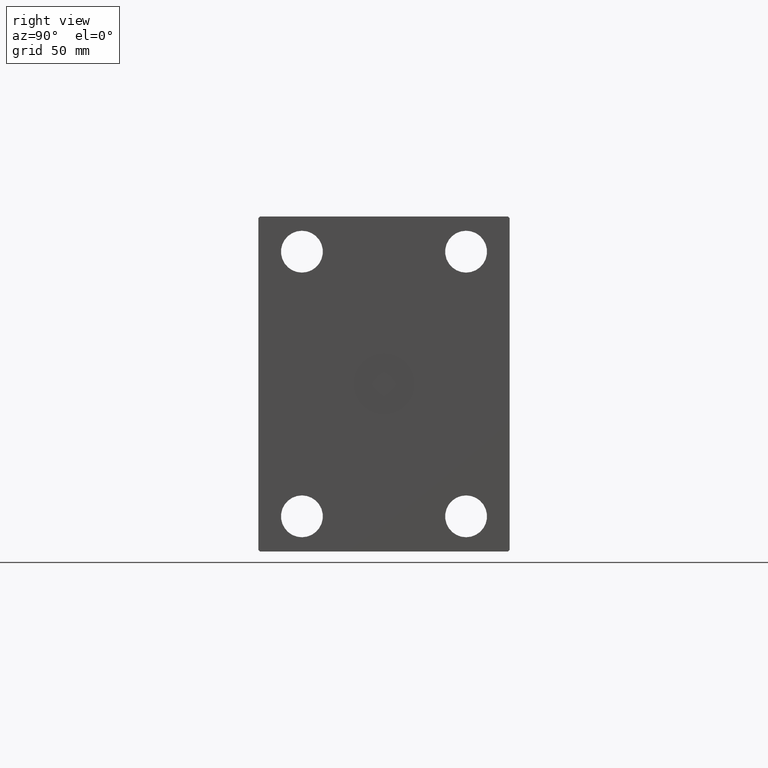
[diagram: clean part render]
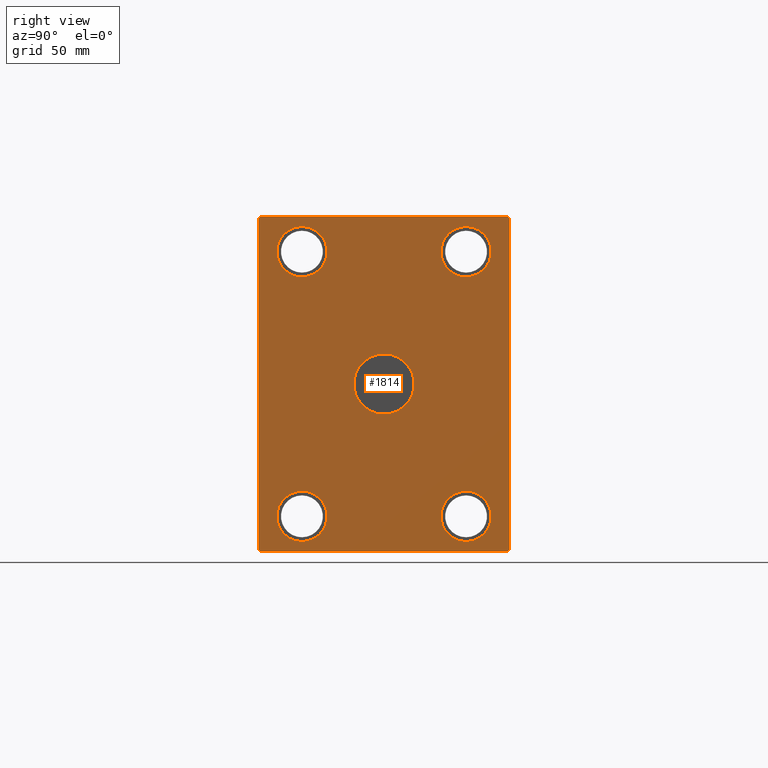
[diagram: same view with one face highlighted and labeled with its STEP entity id]
A machine part, right view. The second image highlights one B-rep face of the part: STEP entity #1814.
In plain terms, the highlighted planar face has unit normal (1, 0, 0).
Its self-contained STEP definition (entity closure, byte-faithful):
#4 = EDGE_CURVE ( 'NONE', #39432, #7475, #32921, .T. ) ;
#267 = DIRECTION ( 'NONE',  ( 1.000000000000000000, -0.000000000000000000, -0.000000000000000000 ) ) ;
#402 = LINE ( 'NONE', #39279, #3067 ) ;
#1397 = VERTEX_POINT ( 'NONE', #40079 ) ;
#1621 = EDGE_CURVE ( 'NONE', #14940, #37624, #12783, .T. ) ;
#1664 = CARTESIAN_POINT ( 'NONE',  ( 358.0000000000000000, 75.00000000000001421, -99.00000000000004263 ) ) ;
#1814 = ADVANCED_FACE ( 'NONE', ( #27951, #41026, #34806, #31808, #30940, #18278 ), #22147, .T. ) ;
#1824 = LINE ( 'NONE', #14929, #41932 ) ;
#2053 = VERTEX_POINT ( 'NONE', #31759 ) ;
#2165 = CARTESIAN_POINT ( 'NONE',  ( 358.0000000000000000, 49.00000000000000711, -64.00000000000001421 ) ) ;
#2192 = LINE ( 'NONE', #15301, #33783 ) ;
#2337 = VERTEX_POINT ( 'NONE', #37057 ) ;
#2371 = CARTESIAN_POINT ( 'NONE',  ( 358.0000000000000000, 49.00000000000000711, 79.00000000000001421 ) ) ;
#2867 = CARTESIAN_POINT ( 'NONE',  ( 358.0000000000000000, -48.99999999999999289, 64.00000000000001421 ) ) ;
#3067 = VECTOR ( 'NONE', #32641, 1000.000000000000000 ) ;
#3227 = VERTEX_POINT ( 'NONE', #9156 ) ;
#3371 = DIRECTION ( 'NONE',  ( 0.000000000000000000, -0.7071067811865474617, 0.7071067811865474617 ) ) ;
#3753 = EDGE_CURVE ( 'NONE', #40786, #2337, #28917, .T. ) ;
#4459 = AXIS2_PLACEMENT_3D ( 'NONE', #2371, #12883, #42501 ) ;
#4492 = ORIENTED_EDGE ( 'NONE', *, *, #22049, .T. ) ;
#4513 = EDGE_CURVE ( 'NONE', #35621, #14940, #1824, .T. ) ;
#4593 = ORIENTED_EDGE ( 'NONE', *, *, #34732, .T. ) ;
#4802 = AXIS2_PLACEMENT_3D ( 'NONE', #25165, #38444, #5386 ) ;
#5386 = DIRECTION ( 'NONE',  ( 0.000000000000000000, 0.000000000000000000, -1.000000000000000000 ) ) ;
#5711 = CIRCLE ( 'NONE', #16013, 15.00000000000000000 ) ;
#6079 = CARTESIAN_POINT ( 'NONE',  ( 358.0000000000000000, -48.99999999999999289, -79.00000000000001421 ) ) ;
#6317 = VECTOR ( 'NONE', #24059, 1000.000000000000000 ) ;
#6964 = CARTESIAN_POINT ( 'NONE',  ( 358.0000000000000000, 75.00000000000000000, 98.99999999999995737 ) ) ;
#7097 = AXIS2_PLACEMENT_3D ( 'NONE', #37511, #11533, #7880 ) ;
#7323 = CIRCLE ( 'NONE', #38168, 15.00000000000000000 ) ;
#7352 = CARTESIAN_POINT ( 'NONE',  ( 358.0000000000000000, -48.99999999999999289, -79.00000000000001421 ) ) ;
#7461 = VERTEX_POINT ( 'NONE', #2165 ) ;
#7475 = VERTEX_POINT ( 'NONE', #21731 ) ;
#7880 = DIRECTION ( 'NONE',  ( 0.000000000000000000, 0.000000000000000000, 1.000000000000000000 ) ) ;
#8052 = CARTESIAN_POINT ( 'NONE',  ( 358.0000000000000000, 74.00000000000000000, 99.99999999999995737 ) ) ;
#8208 = AXIS2_PLACEMENT_3D ( 'NONE', #7352, #39571, #23472 ) ;
#9156 = CARTESIAN_POINT ( 'NONE',  ( 358.0000000000000000, -74.00000000000000000, 99.99999999999994316 ) ) ;
#9690 = CARTESIAN_POINT ( 'NONE',  ( 358.0000000000000000, 74.00000000000001421, -100.0000000000000426 ) ) ;
#9834 = LINE ( 'NONE', #12422, #37315 ) ;
#11262 = CARTESIAN_POINT ( 'NONE',  ( 358.0000000000000000, -48.99999999999999289, -94.00000000000001421 ) ) ;
#11533 = DIRECTION ( 'NONE',  ( -1.000000000000000000, -0.000000000000000000, -0.000000000000000000 ) ) ;
#12379 = VERTEX_POINT ( 'NONE', #1664 ) ;
#12422 = CARTESIAN_POINT ( 'NONE',  ( 358.0000000000000000, -75.00000000000000000, 98.99999999999994316 ) ) ;
#12504 = ORIENTED_EDGE ( 'NONE', *, *, #4513, .T. ) ;
#12696 = EDGE_LOOP ( 'NONE', ( #36086, #19572 ) ) ;
#12783 = LINE ( 'NONE', #35118, #26769 ) ;
#12883 = DIRECTION ( 'NONE',  ( 1.000000000000000000, -0.000000000000000000, -0.000000000000000000 ) ) ;
#12987 = DIRECTION ( 'NONE',  ( 0.000000000000000000, 0.000000000000000000, 1.000000000000000000 ) ) ;
#13035 = ORIENTED_EDGE ( 'NONE', *, *, #33861, .T. ) ;
#13315 = EDGE_LOOP ( 'NONE', ( #13666, #17389 ) ) ;
#13666 = ORIENTED_EDGE ( 'NONE', *, *, #35695, .T. ) ;
#13953 = CARTESIAN_POINT ( 'NONE',  ( 358.0000000000000000, 0.000000000000000000, -18.00000000000000000 ) ) ;
#13975 = ORIENTED_EDGE ( 'NONE', *, *, #21157, .T. ) ;
#14043 = LINE ( 'NONE', #40024, #21384 ) ;
#14590 = CIRCLE ( 'NONE', #28322, 15.00000000000000000 ) ;
#14765 = CARTESIAN_POINT ( 'NONE',  ( 358.0000000000000000, -73.99999999999998579, -100.0000000000000426 ) ) ;
#14929 = CARTESIAN_POINT ( 'NONE',  ( 358.0000000000000000, -74.99999999999997158, -99.00000000000005684 ) ) ;
#14940 = VERTEX_POINT ( 'NONE', #14765 ) ;
#14959 = EDGE_CURVE ( 'NONE', #7461, #26246, #31796, .T. ) ;
#15301 = CARTESIAN_POINT ( 'NONE',  ( 358.0000000000000000, -74.00000000000000000, 99.99999999999994316 ) ) ;
#15876 = DIRECTION ( 'NONE',  ( 0.000000000000000000, 0.000000000000000000, -1.000000000000000000 ) ) ;
#15987 = CIRCLE ( 'NONE', #39974, 15.00000000000000000 ) ;
#16013 = AXIS2_PLACEMENT_3D ( 'NONE', #6079, #267, #38937 ) ;
#16642 = CARTESIAN_POINT ( 'NONE',  ( 358.0000000000000000, -74.99999999999997158, -99.00000000000005684 ) ) ;
#17208 = CARTESIAN_POINT ( 'NONE',  ( 358.0000000000000000, 49.00000000000000711, -94.00000000000001421 ) ) ;
#17261 = AXIS2_PLACEMENT_3D ( 'NONE', #22744, #37825, #29391 ) ;
#17389 = ORIENTED_EDGE ( 'NONE', *, *, #14959, .T. ) ;
#17811 = CARTESIAN_POINT ( 'NONE',  ( 358.0000000000000000, 75.00000000000001421, -99.00000000000004263 ) ) ;
#18080 = DIRECTION ( 'NONE',  ( 0.000000000000000000, 0.000000000000000000, -1.000000000000000000 ) ) ;
#18278 = FACE_BOUND ( 'NONE', #21961, .T. ) ;
#18846 = EDGE_CURVE ( 'NONE', #2337, #40786, #40056, .T. ) ;
#18937 = EDGE_LOOP ( 'NONE', ( #39336, #40865 ) ) ;
#19033 = EDGE_CURVE ( 'NONE', #30529, #3227, #402, .T. ) ;
#19061 = EDGE_LOOP ( 'NONE', ( #20911, #30623 ) ) ;
#19572 = ORIENTED_EDGE ( 'NONE', *, *, #36663, .F. ) ;
#19980 = VERTEX_POINT ( 'NONE', #27043 ) ;
#20422 = DIRECTION ( 'NONE',  ( 1.000000000000000000, 0.000000000000000000, 0.000000000000000000 ) ) ;
#20725 = EDGE_CURVE ( 'NONE', #23725, #1397, #32591, .T. ) ;
#20911 = ORIENTED_EDGE ( 'NONE', *, *, #3753, .F. ) ;
#21157 = EDGE_CURVE ( 'NONE', #37752, #30529, #26997, .T. ) ;
#21384 = VECTOR ( 'NONE', #37216, 1000.000000000000114 ) ;
#21703 = DIRECTION ( 'NONE',  ( 1.000000000000000000, -0.000000000000000000, -0.000000000000000000 ) ) ;
#21731 = CARTESIAN_POINT ( 'NONE',  ( 358.0000000000000000, -48.99999999999999289, -64.00000000000001421 ) ) ;
#21771 = ORIENTED_EDGE ( 'NONE', *, *, #19033, .T. ) ;
#21961 = EDGE_LOOP ( 'NONE', ( #41843, #34976 ) ) ;
#22049 = EDGE_CURVE ( 'NONE', #2053, #35621, #9834, .T. ) ;
#22147 = PLANE ( 'NONE',  #4802 ) ;
#22744 = CARTESIAN_POINT ( 'NONE',  ( 358.0000000000000000, -48.99999999999999289, 79.00000000000001421 ) ) ;
#23424 = AXIS2_PLACEMENT_3D ( 'NONE', #30963, #33976, #18080 ) ;
#23472 = DIRECTION ( 'NONE',  ( 0.000000000000000000, 0.000000000000000000, -1.000000000000000000 ) ) ;
#23725 = VERTEX_POINT ( 'NONE', #26287 ) ;
#24059 = DIRECTION ( 'NONE',  ( 0.000000000000000000, -7.008983741320432232E-17, 1.000000000000000000 ) ) ;
#25165 = CARTESIAN_POINT ( 'NONE',  ( 358.0000000000000000, 0.000000000000000000, 0.000000000000000000 ) ) ;
#25378 = EDGE_LOOP ( 'NONE', ( #13975, #21771, #4593, #4492, #12504, #26440, #42214, #13035 ) ) ;
#25895 = DIRECTION ( 'NONE',  ( 0.000000000000000000, 1.000000000000000000, 0.000000000000000000 ) ) ;
#26209 = EDGE_CURVE ( 'NONE', #33442, #19980, #7323, .T. ) ;
#26246 = VERTEX_POINT ( 'NONE', #17208 ) ;
#26287 = CARTESIAN_POINT ( 'NONE',  ( 358.0000000000000000, 49.00000000000000711, 64.00000000000001421 ) ) ;
#26366 = CARTESIAN_POINT ( 'NONE',  ( 358.0000000000000000, 75.00000000000000000, 98.99999999999995737 ) ) ;
#26440 = ORIENTED_EDGE ( 'NONE', *, *, #1621, .T. ) ;
#26769 = VECTOR ( 'NONE', #25895, 1000.000000000000000 ) ;
#26997 = LINE ( 'NONE', #26366, #34643 ) ;
#27043 = CARTESIAN_POINT ( 'NONE',  ( 358.0000000000000000, -48.99999999999999289, 94.00000000000001421 ) ) ;
#27286 = LINE ( 'NONE', #17811, #6317 ) ;
#27527 = CARTESIAN_POINT ( 'NONE',  ( 358.0000000000000000, 49.00000000000000711, -79.00000000000001421 ) ) ;
#27951 = FACE_BOUND ( 'NONE', #19061, .T. ) ;
#28322 = AXIS2_PLACEMENT_3D ( 'NONE', #28770, #21703, #15876 ) ;
#28770 = CARTESIAN_POINT ( 'NONE',  ( 358.0000000000000000, 49.00000000000000711, 79.00000000000001421 ) ) ;
#28917 = CIRCLE ( 'NONE', #23424, 18.00000000000000000 ) ;
#29391 = DIRECTION ( 'NONE',  ( 0.000000000000000000, 0.000000000000000000, 1.000000000000000000 ) ) ;
#30300 = DIRECTION ( 'NONE',  ( 0.000000000000000000, 0.000000000000000000, -1.000000000000000000 ) ) ;
#30529 = VERTEX_POINT ( 'NONE', #8052 ) ;
#30623 = ORIENTED_EDGE ( 'NONE', *, *, #18846, .F. ) ;
#30940 = FACE_BOUND ( 'NONE', #12696, .T. ) ;
#30963 = CARTESIAN_POINT ( 'NONE',  ( 358.0000000000000000, 0.000000000000000000, 0.000000000000000000 ) ) ;
#31572 = EDGE_CURVE ( 'NONE', #37624, #12379, #14043, .T. ) ;
#31759 = CARTESIAN_POINT ( 'NONE',  ( 358.0000000000000000, -75.00000000000000000, 98.99999999999994316 ) ) ;
#31796 = CIRCLE ( 'NONE', #7097, 15.00000000000000000 ) ;
#31808 = FACE_OUTER_BOUND ( 'NONE', #25378, .T. ) ;
#32591 = CIRCLE ( 'NONE', #4459, 15.00000000000000000 ) ;
#32641 = DIRECTION ( 'NONE',  ( 0.000000000000000000, -1.000000000000000000, -9.376883653928687363E-17 ) ) ;
#32879 = EDGE_CURVE ( 'NONE', #19980, #33442, #35776, .T. ) ;
#32921 = CIRCLE ( 'NONE', #8208, 15.00000000000000000 ) ;
#33442 = VERTEX_POINT ( 'NONE', #2867 ) ;
#33783 = VECTOR ( 'NONE', #38473, 1000.000000000000114 ) ;
#33861 = EDGE_CURVE ( 'NONE', #12379, #37752, #27286, .T. ) ;
#33941 = CARTESIAN_POINT ( 'NONE',  ( 358.0000000000000000, 0.000000000000000000, 0.000000000000000000 ) ) ;
#33976 = DIRECTION ( 'NONE',  ( 1.000000000000000000, 0.000000000000000000, 0.000000000000000000 ) ) ;
#34609 = DIRECTION ( 'NONE',  ( 0.000000000000000000, 0.000000000000000000, 1.000000000000000000 ) ) ;
#34643 = VECTOR ( 'NONE', #3371, 1000.000000000000114 ) ;
#34732 = EDGE_CURVE ( 'NONE', #3227, #2053, #2192, .T. ) ;
#34806 = FACE_BOUND ( 'NONE', #13315, .T. ) ;
#34965 = EDGE_CURVE ( 'NONE', #1397, #23725, #14590, .T. ) ;
#34976 = ORIENTED_EDGE ( 'NONE', *, *, #34965, .F. ) ;
#35118 = CARTESIAN_POINT ( 'NONE',  ( 358.0000000000000000, -73.99999999999998579, -100.0000000000000426 ) ) ;
#35538 = CARTESIAN_POINT ( 'NONE',  ( 358.0000000000000000, -48.99999999999999289, 79.00000000000001421 ) ) ;
#35621 = VERTEX_POINT ( 'NONE', #16642 ) ;
#35695 = EDGE_CURVE ( 'NONE', #26246, #7461, #15987, .T. ) ;
#35749 = DIRECTION ( 'NONE',  ( -1.000000000000000000, -0.000000000000000000, -0.000000000000000000 ) ) ;
#35776 = CIRCLE ( 'NONE', #17261, 15.00000000000000000 ) ;
#36086 = ORIENTED_EDGE ( 'NONE', *, *, #4, .F. ) ;
#36663 = EDGE_CURVE ( 'NONE', #7475, #39432, #5711, .T. ) ;
#37057 = CARTESIAN_POINT ( 'NONE',  ( 358.0000000000000000, 2.204364238465235428E-15, 18.00000000000000000 ) ) ;
#37216 = DIRECTION ( 'NONE',  ( 0.000000000000000000, 0.7071067811865474617, 0.7071067811865474617 ) ) ;
#37315 = VECTOR ( 'NONE', #39035, 1000.000000000000000 ) ;
#37511 = CARTESIAN_POINT ( 'NONE',  ( 358.0000000000000000, 49.00000000000000711, -79.00000000000001421 ) ) ;
#37624 = VERTEX_POINT ( 'NONE', #9690 ) ;
#37752 = VERTEX_POINT ( 'NONE', #6964 ) ;
#37825 = DIRECTION ( 'NONE',  ( -1.000000000000000000, -0.000000000000000000, -0.000000000000000000 ) ) ;
#38168 = AXIS2_PLACEMENT_3D ( 'NONE', #35538, #35749, #12987 ) ;
#38444 = DIRECTION ( 'NONE',  ( 1.000000000000000000, 0.000000000000000000, 0.000000000000000000 ) ) ;
#38473 = DIRECTION ( 'NONE',  ( 0.000000000000000000, -0.7071067811865474617, -0.7071067811865474617 ) ) ;
#38937 = DIRECTION ( 'NONE',  ( 0.000000000000000000, 0.000000000000000000, -1.000000000000000000 ) ) ;
#39035 = DIRECTION ( 'NONE',  ( 0.000000000000000000, 1.401796748264086446E-16, -1.000000000000000000 ) ) ;
#39279 = CARTESIAN_POINT ( 'NONE',  ( 358.0000000000000000, 74.00000000000000000, 99.99999999999995737 ) ) ;
#39336 = ORIENTED_EDGE ( 'NONE', *, *, #26209, .T. ) ;
#39432 = VERTEX_POINT ( 'NONE', #11262 ) ;
#39571 = DIRECTION ( 'NONE',  ( 1.000000000000000000, -0.000000000000000000, -0.000000000000000000 ) ) ;
#39974 = AXIS2_PLACEMENT_3D ( 'NONE', #27527, #40608, #34609 ) ;
#40024 = CARTESIAN_POINT ( 'NONE',  ( 358.0000000000000000, 74.00000000000001421, -100.0000000000000426 ) ) ;
#40056 = CIRCLE ( 'NONE', #41442, 18.00000000000000000 ) ;
#40079 = CARTESIAN_POINT ( 'NONE',  ( 358.0000000000000000, 49.00000000000000711, 94.00000000000001421 ) ) ;
#40608 = DIRECTION ( 'NONE',  ( -1.000000000000000000, -0.000000000000000000, -0.000000000000000000 ) ) ;
#40786 = VERTEX_POINT ( 'NONE', #13953 ) ;
#40865 = ORIENTED_EDGE ( 'NONE', *, *, #32879, .T. ) ;
#41026 = FACE_BOUND ( 'NONE', #18937, .T. ) ;
#41108 = DIRECTION ( 'NONE',  ( 0.000000000000000000, 0.7071067811865474617, -0.7071067811865474617 ) ) ;
#41442 = AXIS2_PLACEMENT_3D ( 'NONE', #33941, #20422, #30300 ) ;
#41843 = ORIENTED_EDGE ( 'NONE', *, *, #20725, .F. ) ;
#41932 = VECTOR ( 'NONE', #41108, 1000.000000000000114 ) ;
#42214 = ORIENTED_EDGE ( 'NONE', *, *, #31572, .T. ) ;
#42501 = DIRECTION ( 'NONE',  ( 0.000000000000000000, 0.000000000000000000, -1.000000000000000000 ) ) ;